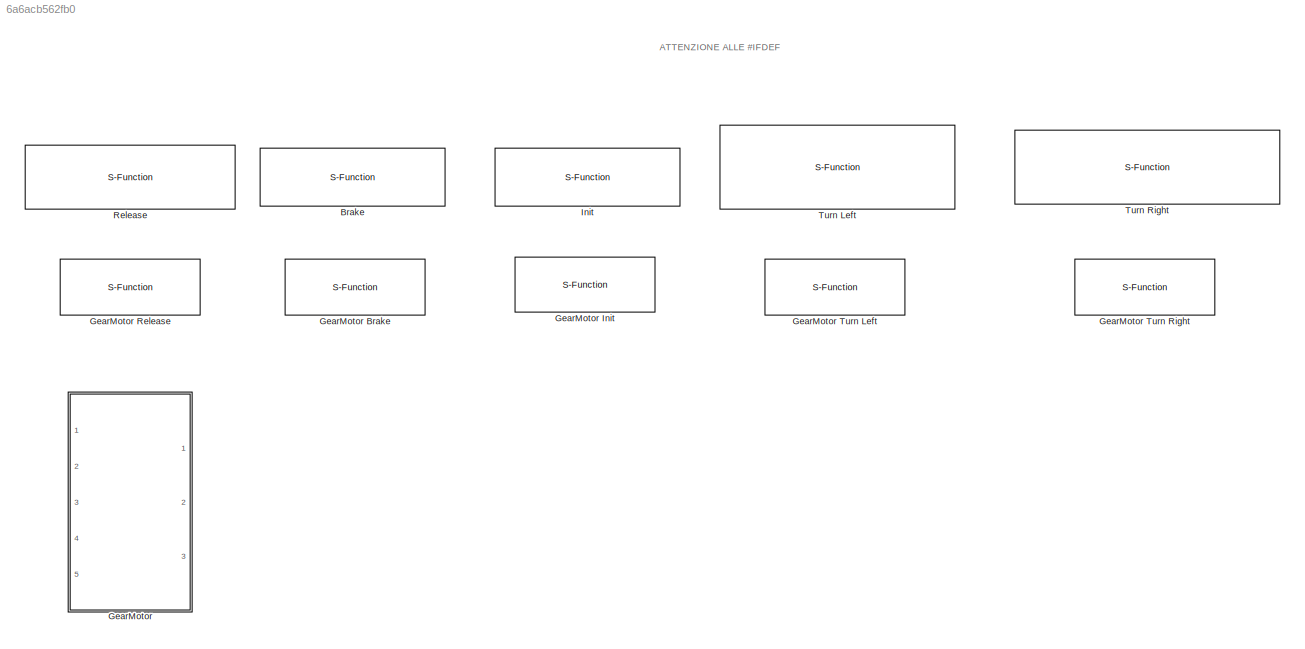
MODEL slx_6a6acb562fb0
KIND library
CONFIG AbsTol = auto
CONFIG EnableMultiTasking = off
CONFIG FixedStep = auto
CONFIG MaxStep = auto
CONFIG MinStep = auto
CONFIG RelTol = 1e-3
CONFIG SampleTimeConstraint = Unconstrained
CONFIG Solver = VariableStepAuto
CONFIG SolverName = VariableStepAuto
CONFIG StartTime = 0.0
CONFIG StopTime = 10.0
BLOCK [S-Function] Brake
  CopyFcn = set_param(gcbh,'LinkStatus','none')
  EnableBusSupport = off
  FunctionName = GearMotor_brake
  InitFcn = try, set_param(gcb,'FunctionName','GearMotor_brake'), end
  OpenFcn = sfunctionwizard(gcbh)
  Ports = [0, 3]
  PreSaveFcn = try, set_param(gcb,'FunctionName','GearMotor_brake'), end
  SFcnIsStateOwnerBlock = off
  SFunctionDeploymentMode = off
  SFunctionModules = GearMotor_brake_wrapper
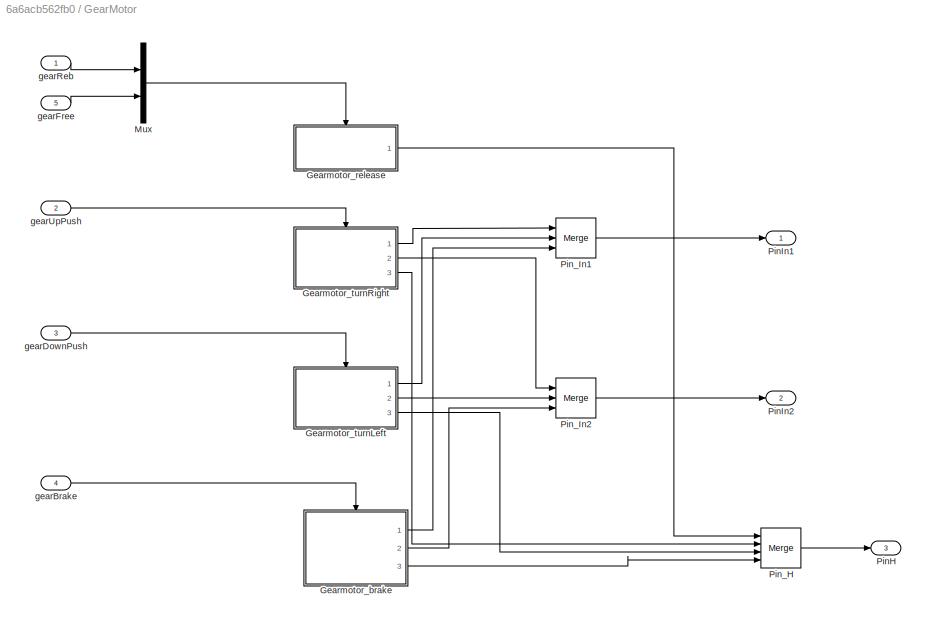
BLOCK [SubSystem] GearMotor
  Permissions = NoReadOrWrite
  Ports = [5, 3]
  RequestExecContextInheritance = off
BLOCK [S-Function] GearMotor Brake
  EnableBusSupport = off
  FunctionName = GearMotor_brake
  Ports = [0, 3]
  SFcnIsStateOwnerBlock = off
  SFunctionDeploymentMode = off
BLOCK [S-Function] GearMotor Init
  EnableBusSupport = off
  FunctionName = GearMotor_init
  Ports = []
  SFcnIsStateOwnerBlock = off
  SFunctionDeploymentMode = off
BLOCK [S-Function] GearMotor Release
  EnableBusSupport = off
  FunctionName = GearMotor_release
  Ports = [0, 1]
  SFcnIsStateOwnerBlock = off
  SFunctionDeploymentMode = off
BLOCK [S-Function] GearMotor Turn Left
  EnableBusSupport = off
  FunctionName = GearMotor_turnLeft
  Ports = [0, 3]
  SFcnIsStateOwnerBlock = off
  SFunctionDeploymentMode = off
BLOCK [S-Function] GearMotor Turn Right
  EnableBusSupport = off
  FunctionName = GearMotor_turnRight
  Ports = [0, 3]
  SFcnIsStateOwnerBlock = off
  SFunctionDeploymentMode = off
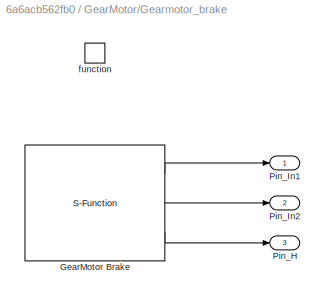
BLOCK [SubSystem] GearMotor/Gearmotor_brake
  Ports = [0, 3, 0, 1]
  RequestExecContextInheritance = off
  TreatAsAtomicUnit = on
BLOCK [S-Function] GearMotor/Gearmotor_brake/GearMotor Brake
  EnableBusSupport = off
  FunctionName = GearMotor_brake
  Ports = [0, 3]
  SFcnIsStateOwnerBlock = off
  SFunctionDeploymentMode = off
BLOCK [Outport] GearMotor/Gearmotor_brake/Pin_H
  IconDisplay = Port number
  Port = 3
BLOCK [Outport] GearMotor/Gearmotor_brake/Pin_In1
  IconDisplay = Port number
BLOCK [Outport] GearMotor/Gearmotor_brake/Pin_In2
  IconDisplay = Port number
  Port = 2
BLOCK [TriggerPort] GearMotor/Gearmotor_brake/function
  Ports = []
  StatesWhenEnabling = held
  TriggerType = function-call
  VariantControl = Variant
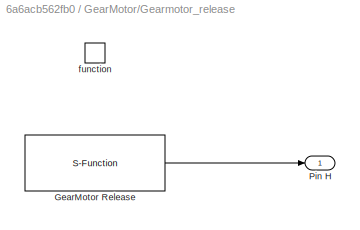
BLOCK [SubSystem] GearMotor/Gearmotor_release
  Ports = [0, 1, 0, 1]
  RequestExecContextInheritance = off
  TreatAsAtomicUnit = on
BLOCK [S-Function] GearMotor/Gearmotor_release/GearMotor Release
  EnableBusSupport = off
  FunctionName = GearMotor_release
  Ports = [0, 1]
  SFcnIsStateOwnerBlock = off
  SFunctionDeploymentMode = off
BLOCK [Outport] GearMotor/Gearmotor_release/Pin H
  IconDisplay = Port number
BLOCK [TriggerPort] GearMotor/Gearmotor_release/function
  Ports = []
  StatesWhenEnabling = held
  TriggerType = function-call
  VariantControl = Variant
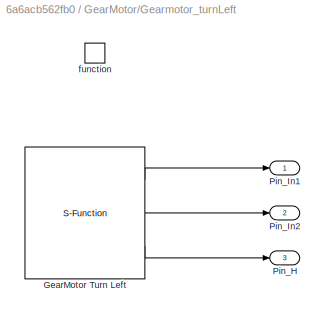
BLOCK [SubSystem] GearMotor/Gearmotor_turnLeft
  Ports = [0, 3, 0, 1]
  RequestExecContextInheritance = off
  TreatAsAtomicUnit = on
BLOCK [S-Function] GearMotor/Gearmotor_turnLeft/GearMotor Turn Left
  EnableBusSupport = off
  FunctionName = GearMotor_turnLeft
  Ports = [0, 3]
  SFcnIsStateOwnerBlock = off
  SFunctionDeploymentMode = off
BLOCK [Outport] GearMotor/Gearmotor_turnLeft/Pin_H
  IconDisplay = Port number
  Port = 3
BLOCK [Outport] GearMotor/Gearmotor_turnLeft/Pin_In1
  IconDisplay = Port number
BLOCK [Outport] GearMotor/Gearmotor_turnLeft/Pin_In2
  IconDisplay = Port number
  Port = 2
BLOCK [TriggerPort] GearMotor/Gearmotor_turnLeft/function
  Ports = []
  StatesWhenEnabling = held
  TriggerType = function-call
  VariantControl = Variant
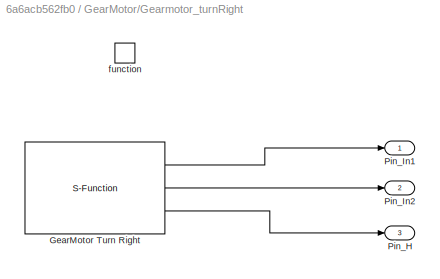
BLOCK [SubSystem] GearMotor/Gearmotor_turnRight
  Ports = [0, 3, 0, 1]
  RequestExecContextInheritance = off
  TreatAsAtomicUnit = on
BLOCK [S-Function] GearMotor/Gearmotor_turnRight/GearMotor Turn Right
  EnableBusSupport = off
  FunctionName = GearMotor_turnRight
  Ports = [0, 3]
  SFcnIsStateOwnerBlock = off
  SFunctionDeploymentMode = off
BLOCK [Outport] GearMotor/Gearmotor_turnRight/Pin_H
  IconDisplay = Port number
  Port = 3
BLOCK [Outport] GearMotor/Gearmotor_turnRight/Pin_In1
  IconDisplay = Port number
BLOCK [Outport] GearMotor/Gearmotor_turnRight/Pin_In2
  IconDisplay = Port number
  Port = 2
BLOCK [TriggerPort] GearMotor/Gearmotor_turnRight/function
  Ports = []
  StatesWhenEnabling = held
  TriggerType = function-call
  VariantControl = Variant
BLOCK [Mux] GearMotor/Mux
  DisplayOption = bar
  Inputs = 2
  Ports = [2, 1]
BLOCK [Outport] GearMotor/PinH
  IconDisplay = Port number
  Port = 3
BLOCK [Outport] GearMotor/PinIn1
  IconDisplay = Port number
BLOCK [Outport] GearMotor/PinIn2
  IconDisplay = Port number
  Port = 2
BLOCK [Merge] GearMotor/Pin_H
  Inputs = 4
  Ports = [4, 1]
BLOCK [Merge] GearMotor/Pin_In1
  Inputs = 3
  Ports = [3, 1]
BLOCK [Merge] GearMotor/Pin_In2
  Inputs = 3
  Ports = [3, 1]
BLOCK [Inport] GearMotor/gearBrake
  IconDisplay = Port number
  Port = 4
BLOCK [Inport] GearMotor/gearDownPush
  IconDisplay = Port number
  Port = 3
BLOCK [Inport] GearMotor/gearFree
  IconDisplay = Port number
  Port = 5
BLOCK [Inport] GearMotor/gearReb
  IconDisplay = Port number
BLOCK [Inport] GearMotor/gearUpPush
  IconDisplay = Port number
  Port = 2
BLOCK [S-Function] Init
  CopyFcn = set_param(gcbh,'LinkStatus','none')
  EnableBusSupport = off
  FunctionName = GearMotor_init
  InitFcn = try, set_param(gcb,'FunctionName','GearMotor_release'), end
  OpenFcn = sfunctionwizard(gcbh)
  Ports = []
  PreSaveFcn = try, set_param(gcb,'FunctionName','GearMotor_init'), end
  SFcnIsStateOwnerBlock = off
  SFunctionDeploymentMode = off
  SFunctionModules = GearMotor_init_wrapper
BLOCK [S-Function] Release
  CopyFcn = set_param(gcbh,'LinkStatus','none')
  EnableBusSupport = off
  FunctionName = GearMotor_release
  InitFcn = try, set_param(gcb,'FunctionName','GearMotor_release'), end
  OpenFcn = sfunctionwizard(gcbh)
  Ports = [0, 1]
  PreSaveFcn = try, set_param(gcb,'FunctionName','GearMotor_release'), end
  SFcnIsStateOwnerBlock = off
  SFunctionDeploymentMode = off
  SFunctionModules = GearMotor_release_wrapper
BLOCK [S-Function] Turn Left
  CopyFcn = set_param(gcbh,'LinkStatus','none')
  EnableBusSupport = off
  FunctionName = GearMotor_turnLeft
  InitFcn = try, set_param(gcb,'FunctionName','GearMotor_turnLeft'), end
  OpenFcn = sfunctionwizard(gcbh)
  Ports = [0, 3]
  PreSaveFcn = try, set_param(gcb,'FunctionName','GearMotor_turnLeft'), end
  SFcnIsStateOwnerBlock = off
  SFunctionDeploymentMode = off
  SFunctionModules = GearMotor_turnLeft_wrapper
BLOCK [S-Function] Turn Right
  CopyFcn = set_param(gcbh,'LinkStatus','none')
  EnableBusSupport = off
  FunctionName = GearMotor_turnRight
  InitFcn = try, set_param(gcb,'FunctionName','GearMotor_turnRight'), end
  OpenFcn = sfunctionwizard(gcbh)
  Ports = [0, 3]
  PreSaveFcn = try, set_param(gcb,'FunctionName','GearMotor_turnRight'), end
  SFcnIsStateOwnerBlock = off
  SFunctionDeploymentMode = off
  SFunctionModules = GearMotor_turnRight_wrapper
ANNOTATION (root): ATTENZIONE ALLE #IFDEF
LINE GearMotor/Gearmotor_brake/GearMotor Brake:1 -> GearMotor/Gearmotor_brake/Pin_In1:1
LINE GearMotor/Gearmotor_brake/GearMotor Brake:2 -> GearMotor/Gearmotor_brake/Pin_In2:1
LINE GearMotor/Gearmotor_brake/GearMotor Brake:3 -> GearMotor/Gearmotor_brake/Pin_H:1
LINE GearMotor/Gearmotor_brake:1 -> GearMotor/Pin_In1:3
LINE GearMotor/Gearmotor_brake:2 -> GearMotor/Pin_In2:3
LINE GearMotor/Gearmotor_brake:3 -> GearMotor/Pin_H:4
LINE GearMotor/Gearmotor_release/GearMotor Release:1 -> GearMotor/Gearmotor_release/Pin H:1
LINE GearMotor/Gearmotor_release:1 -> GearMotor/Pin_H:1
LINE GearMotor/Gearmotor_turnLeft/GearMotor Turn Left:1 -> GearMotor/Gearmotor_turnLeft/Pin_In1:1
LINE GearMotor/Gearmotor_turnLeft/GearMotor Turn Left:2 -> GearMotor/Gearmotor_turnLeft/Pin_In2:1
LINE GearMotor/Gearmotor_turnLeft/GearMotor Turn Left:3 -> GearMotor/Gearmotor_turnLeft/Pin_H:1
LINE GearMotor/Gearmotor_turnLeft:1 -> GearMotor/Pin_In1:2
LINE GearMotor/Gearmotor_turnLeft:2 -> GearMotor/Pin_In2:2
LINE GearMotor/Gearmotor_turnLeft:3 -> GearMotor/Pin_H:3
LINE GearMotor/Gearmotor_turnRight/GearMotor Turn Right:1 -> GearMotor/Gearmotor_turnRight/Pin_In1:1
LINE GearMotor/Gearmotor_turnRight/GearMotor Turn Right:2 -> GearMotor/Gearmotor_turnRight/Pin_In2:1
LINE GearMotor/Gearmotor_turnRight/GearMotor Turn Right:3 -> GearMotor/Gearmotor_turnRight/Pin_H:1
LINE GearMotor/Gearmotor_turnRight:1 -> GearMotor/Pin_In1:1
LINE GearMotor/Gearmotor_turnRight:2 -> GearMotor/Pin_In2:1
LINE GearMotor/Gearmotor_turnRight:3 -> GearMotor/Pin_H:2
LINE GearMotor/Mux:1 -> GearMotor/Gearmotor_release:trigger
LINE GearMotor/Pin_H:1 -> GearMotor/PinH:1
LINE GearMotor/Pin_In1:1 -> GearMotor/PinIn1:1
LINE GearMotor/Pin_In2:1 -> GearMotor/PinIn2:1
LINE GearMotor/gearBrake:1 -> GearMotor/Gearmotor_brake:trigger
LINE GearMotor/gearDownPush:1 -> GearMotor/Gearmotor_turnLeft:trigger
LINE GearMotor/gearFree:1 -> GearMotor/Mux:2
LINE GearMotor/gearReb:1 -> GearMotor/Mux:1
LINE GearMotor/gearUpPush:1 -> GearMotor/Gearmotor_turnRight:trigger
